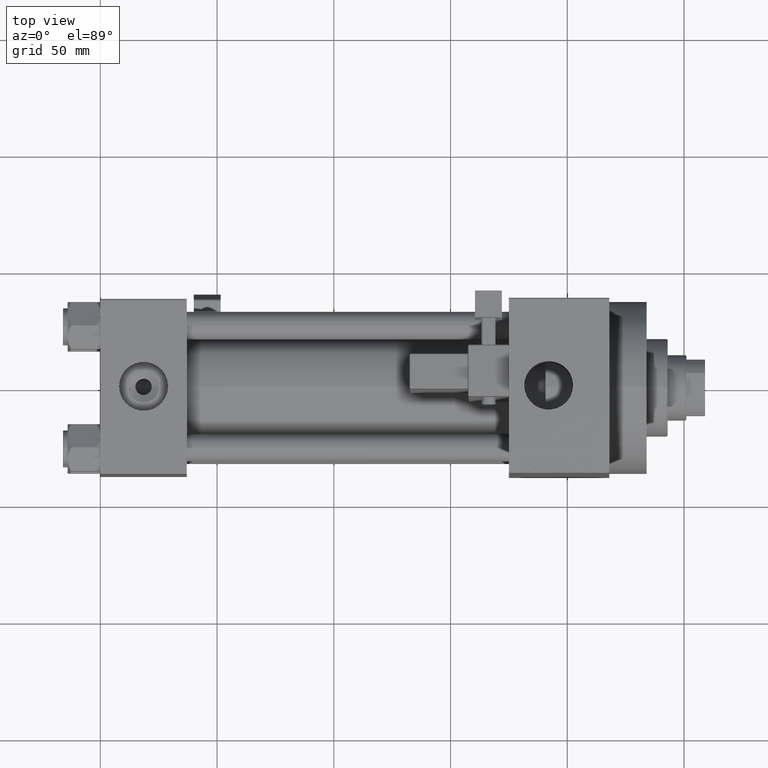
[diagram: clean part render]
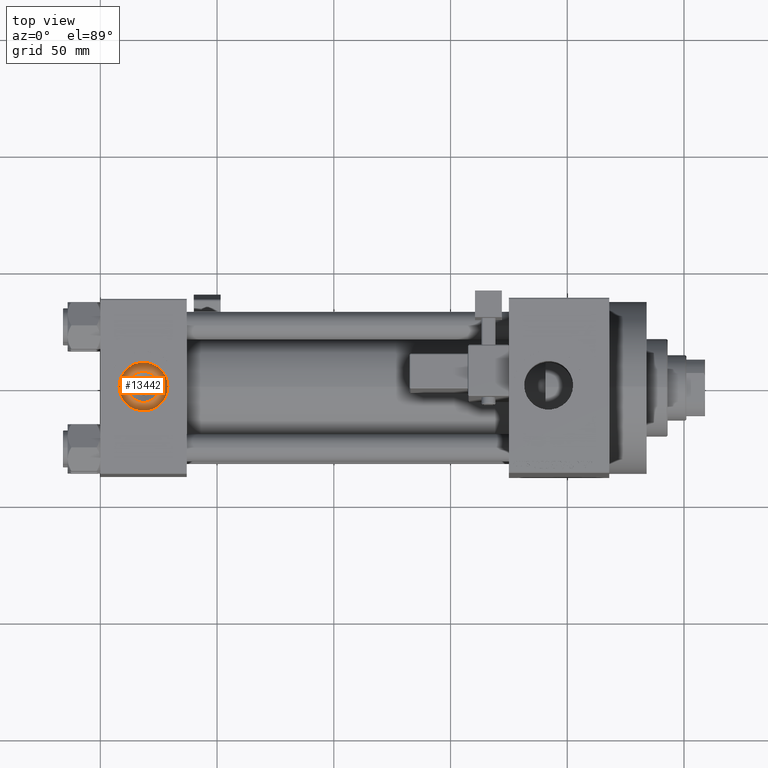
[diagram: same view with one face highlighted and labeled with its STEP entity id]
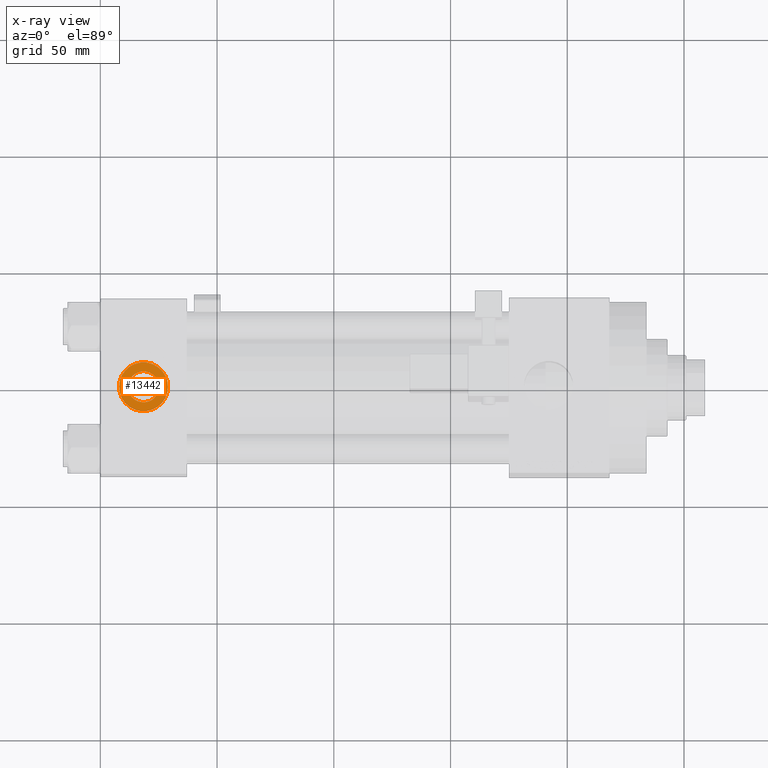
[diagram: x-ray of the same camera — body ghosted, the highlighted face saturated]
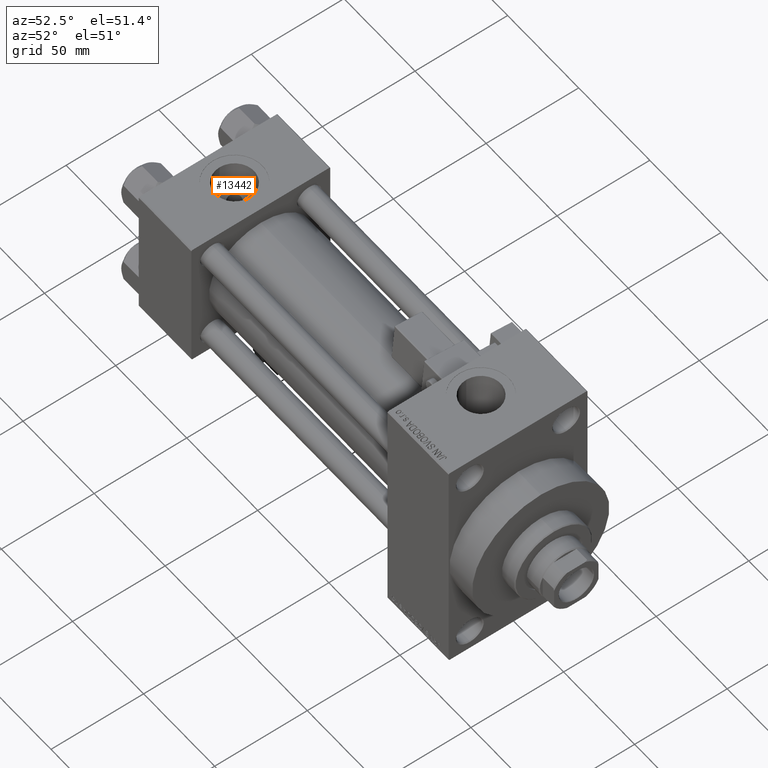
[diagram: same view with one face highlighted and labeled with its STEP entity id]
A machine part, top view. The second image highlights one B-rep face of the part: STEP entity #13442.
The next image is the same camera in x-ray: the body ghosted, the highlighted face saturated — about 0% of this face is hidden behind the body in this view.
A second angle (auxiliary view) of the same face is appended — the face is thin or edge-on in the first view.
In plain terms, the highlighted planar face has unit normal (0, 0, 1).
Its self-contained STEP definition (entity closure, byte-faithful):
#3238 = ORIENTED_EDGE ( 'NONE', *, *, #5076, .T. ) ;
#4091 = PLANE ( 'NONE',  #4787 ) ;
#4152 = AXIS2_PLACEMENT_3D ( 'NONE', #20312, #43535, #12566 ) ;
#4556 = DIRECTION ( 'NONE',  ( 0.000000000000000000, 0.000000000000000000, 1.000000000000000000 ) ) ;
#4774 = VERTEX_POINT ( 'NONE', #13164 ) ;
#4787 = AXIS2_PLACEMENT_3D ( 'NONE', #15825, #5061, #46053 ) ;
#5061 = DIRECTION ( 'NONE',  ( 0.000000000000000000, 0.000000000000000000, 1.000000000000000000 ) ) ;
#5076 = EDGE_CURVE ( 'NONE', #11656, #4774, #8641, .T. ) ;
#6012 = DIRECTION ( 'NONE',  ( 0.000000000000000000, 0.000000000000000000, 1.000000000000000000 ) ) ;
#6725 = CIRCLE ( 'NONE', #44209, 10.48000000000000043 ) ;
#8641 = CIRCLE ( 'NONE', #12530, 10.48000000000000043 ) ;
#9240 = EDGE_LOOP ( 'NONE', ( #44901, #10372 ) ) ;
#10372 = ORIENTED_EDGE ( 'NONE', *, *, #22022, .T. ) ;
#10658 = AXIS2_PLACEMENT_3D ( 'NONE', #22212, #32968, #25477 ) ;
#11567 = CARTESIAN_POINT ( 'NONE',  ( 18.50000000000000000, -5.204170427930421283E-15, 26.69999999999999929 ) ) ;
#11656 = VERTEX_POINT ( 'NONE', #17770 ) ;
#12530 = AXIS2_PLACEMENT_3D ( 'NONE', #11567, #4556, #26584 ) ;
#12566 = DIRECTION ( 'NONE',  ( 1.000000000000000000, 0.000000000000000000, 0.000000000000000000 ) ) ;
#13164 = CARTESIAN_POINT ( 'NONE',  ( 28.98000000000000043, -5.204170427930421283E-15, 26.69999999999999929 ) ) ;
#13389 = CARTESIAN_POINT ( 'NONE',  ( 25.13999999999998636, -5.204170427930421283E-15, 26.69999999999999929 ) ) ;
#13442 = ADVANCED_FACE ( 'NONE', ( #38327, #26845 ), #4091, .T. ) ;
#13762 = DIRECTION ( 'NONE',  ( 1.000000000000000000, 0.000000000000000000, 0.000000000000000000 ) ) ;
#13847 = VERTEX_POINT ( 'NONE', #25488 ) ;
#14657 = CIRCLE ( 'NONE', #10658, 6.639999999999986358 ) ;
#15825 = CARTESIAN_POINT ( 'NONE',  ( 18.50000000000000000, -5.204170427930421283E-15, 26.69999999999999929 ) ) ;
#17770 = CARTESIAN_POINT ( 'NONE',  ( 8.019999999999999574, -3.920740582423995006E-15, 26.69999999999999929 ) ) ;
#20312 = CARTESIAN_POINT ( 'NONE',  ( 18.50000000000000000, -5.204170427930421283E-15, 26.69999999999999929 ) ) ;
#22022 = EDGE_CURVE ( 'NONE', #13847, #32687, #47220, .T. ) ;
#22212 = CARTESIAN_POINT ( 'NONE',  ( 18.50000000000000000, -5.204170427930421283E-15, 26.69999999999999929 ) ) ;
#22782 = EDGE_LOOP ( 'NONE', ( #35759, #3238 ) ) ;
#25477 = DIRECTION ( 'NONE',  ( 1.000000000000000000, 0.000000000000000000, 0.000000000000000000 ) ) ;
#25488 = CARTESIAN_POINT ( 'NONE',  ( 11.86000000000001364, -4.391004953296580751E-15, 26.69999999999999929 ) ) ;
#25863 = EDGE_CURVE ( 'NONE', #32687, #13847, #14657, .T. ) ;
#26584 = DIRECTION ( 'NONE',  ( 1.000000000000000000, 0.000000000000000000, 0.000000000000000000 ) ) ;
#26845 = FACE_OUTER_BOUND ( 'NONE', #22782, .T. ) ;
#32267 = CARTESIAN_POINT ( 'NONE',  ( 18.50000000000000000, -5.204170427930421283E-15, 26.69999999999999929 ) ) ;
#32687 = VERTEX_POINT ( 'NONE', #13389 ) ;
#32968 = DIRECTION ( 'NONE',  ( -0.000000000000000000, -0.000000000000000000, -1.000000000000000000 ) ) ;
#35759 = ORIENTED_EDGE ( 'NONE', *, *, #41012, .T. ) ;
#38327 = FACE_BOUND ( 'NONE', #9240, .T. ) ;
#41012 = EDGE_CURVE ( 'NONE', #4774, #11656, #6725, .T. ) ;
#43535 = DIRECTION ( 'NONE',  ( -0.000000000000000000, -0.000000000000000000, -1.000000000000000000 ) ) ;
#44209 = AXIS2_PLACEMENT_3D ( 'NONE', #32267, #6012, #13762 ) ;
#44901 = ORIENTED_EDGE ( 'NONE', *, *, #25863, .T. ) ;
#46053 = DIRECTION ( 'NONE',  ( 1.000000000000000000, 0.000000000000000000, -0.000000000000000000 ) ) ;
#47220 = CIRCLE ( 'NONE', #4152, 6.639999999999986358 ) ;